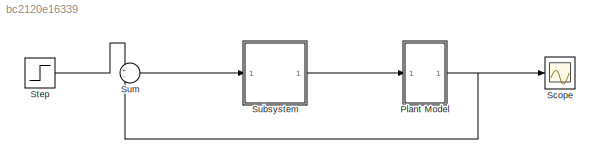
MODEL slx_bc2120e16339
KIND model
CONFIG AbsTol = auto
CONFIG EnableMultiTasking = off
CONFIG FixedStep = auto
CONFIG MaxStep = auto
CONFIG MinStep = auto
CONFIG RelTol = 1e-3
CONFIG SampleTimeConstraint = Unconstrained
CONFIG SolverName = VariableStepAuto
CONFIG StartTime = 0.0
CONFIG StopTime = 120
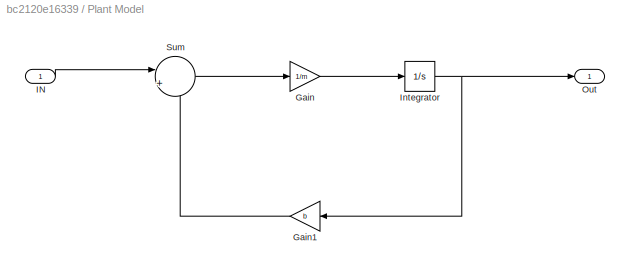
BLOCK [SubSystem] Plant Model
  Ports = [1, 1]
  RequestExecContextInheritance = off
BLOCK [Gain] Plant Model/Gain
  Gain = 1/m
BLOCK [Gain] Plant Model/Gain1
  Gain = b
  NameLocation = top
BLOCK [Inport] Plant Model/IN
BLOCK [Integrator] Plant Model/Integrator
  Ports = [1, 1]
BLOCK [Outport] Plant Model/Out
BLOCK [Sum] Plant Model/Sum
  Inputs = |+-
  Ports = [2, 1]
BLOCK [Scope] Scope
  Floating = off
  NumInputPorts = 1
  Ports = [1]
  ScopeSpecificationString = Simulink.scopes.TimeScopeBlockCfg('CurrentConfiguration', extmgr.ConfigurationSet(extmgr.Configuration('Core','General UI',true),extmgr.Configuration('Core','Source UI',true),extmgr.Configuration('Sources','WiredSimulink',true),extmgr.Configuration('Visuals','Time Domain',true,'SerializedDisplays',{struct('MinYLimReal','-1.25','MaxYLimReal','11.25','YLabelReal','','MinYLimMag','0.00000','MaxYLimMa...<+1375ch>
BLOCK [Step] Step
  After = 10
  SampleTime = 0
  Time = 0
BLOCK [ModelReference] Subsystem
  ModelNameDialog = Subsystem
  ModelReferenceVersion = 1.1
  Ports = [1, 1]
BLOCK [Sum] Sum
  Inputs = +-
  NameLocation = top
  Ports = [2, 1]
LINE Plant Model/Gain1:1 -> Plant Model/Sum:2
LINE Plant Model/Gain:1 -> Plant Model/Integrator:1
LINE Plant Model/IN:1 -> Plant Model/Sum:1
NET Plant Model/Integrator:1 -> Plant Model/Gain1:1, Plant Model/Out:1
LINE Plant Model/Sum:1 -> Plant Model/Gain:1
NET Plant Model:1 -> Scope:1, Sum:2
LINE Step:1 -> Sum:1
LINE Subsystem:1 -> Plant Model:1
LINE Sum:1 -> Subsystem:1
note: NET lines group one-source signal fan-out (src -> all destinations, sorted); 1:1 wires keep LINE
